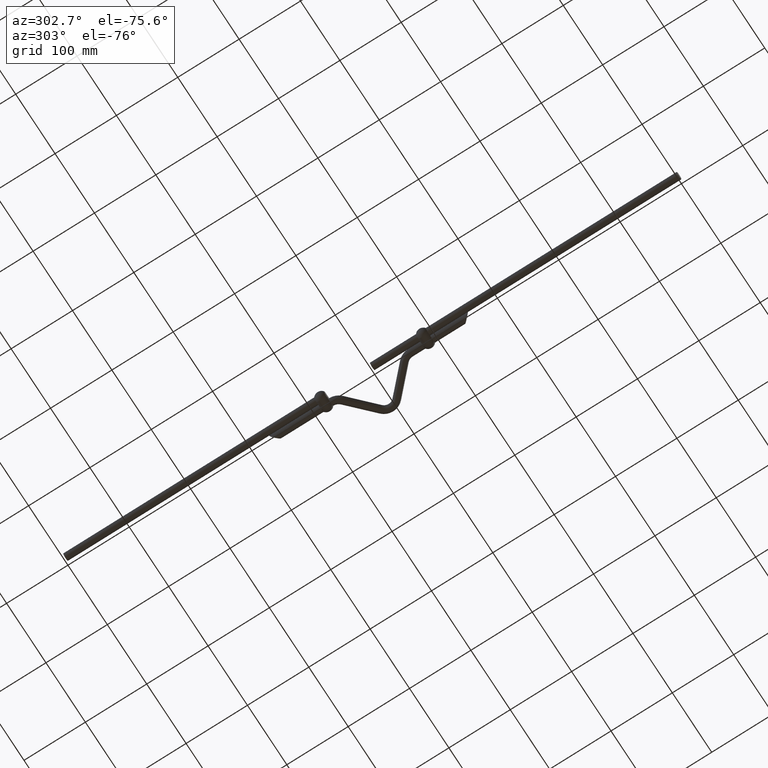
[diagram: clean part render]
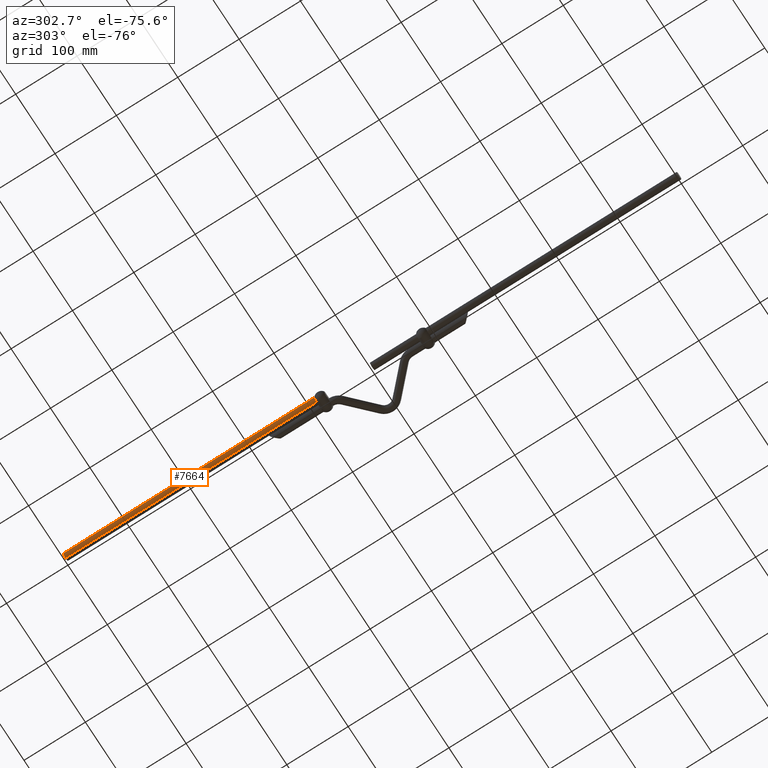
[diagram: same view with one face highlighted and labeled with its STEP entity id]
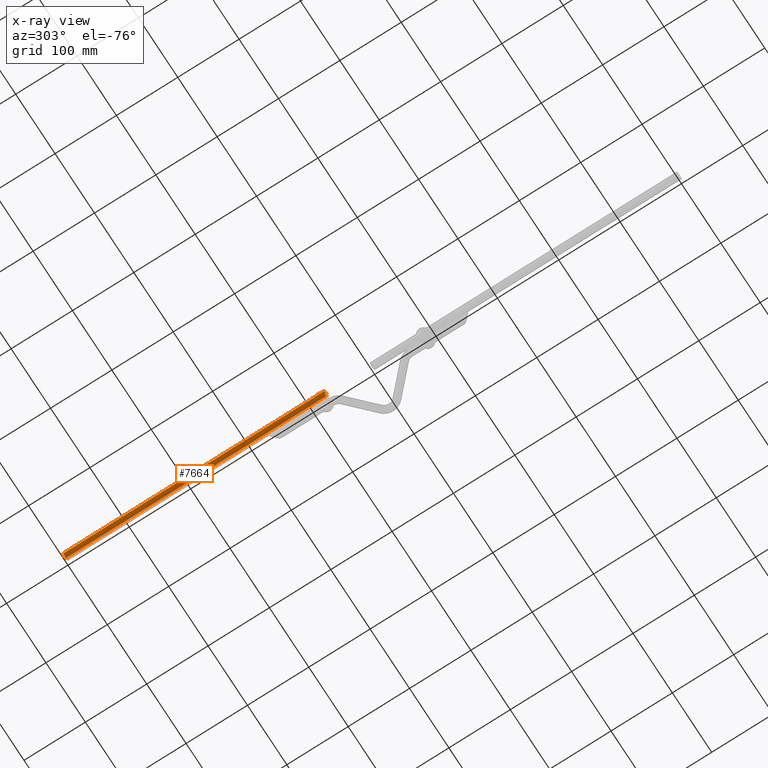
[diagram: x-ray of the same camera — body ghosted, the highlighted face saturated]
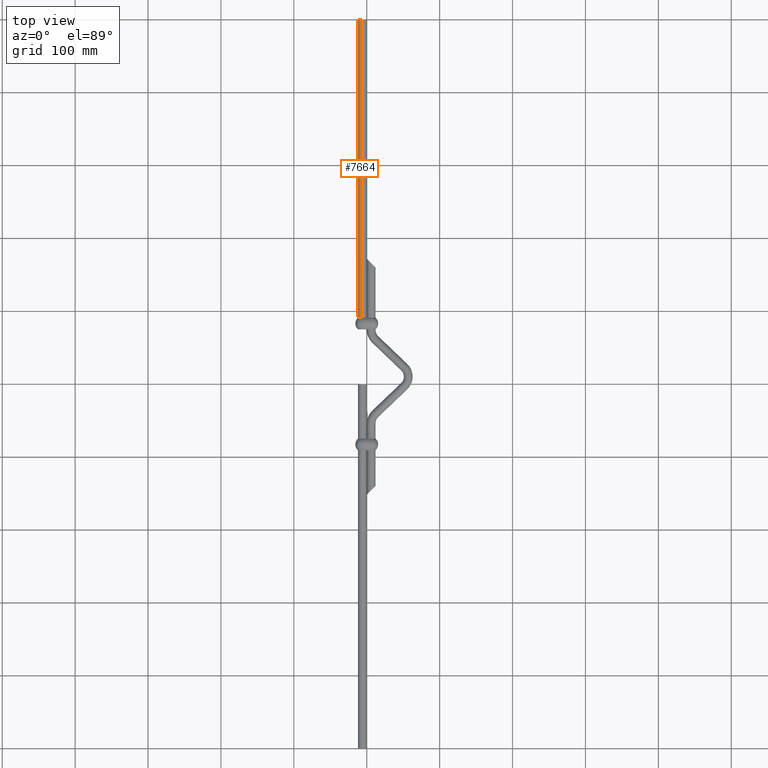
[diagram: same view with one face highlighted and labeled with its STEP entity id]
A machine part, auxiliary view. The second image highlights one B-rep face of the part: STEP entity #7664.
The next image is the same camera in x-ray: the body ghosted, the highlighted face saturated — about 0% of this face is hidden behind the body in this view.
A second angle (top view) of the same face is appended — the face is thin or edge-on in the first view.
In plain terms, the highlighted cylindrical surface (edge-blend (fillet) strip) has radius 6 mm, axis along (-0, -1, -0).
Its self-contained STEP definition (entity closure, byte-faithful):
#571 = CARTESIAN_POINT ( 'NONE',  ( -5.999999999999999100, 575.0000000000000000, 6.000000000000000900 ) ) ;
#2121 = LINE ( 'NONE', #10593, #10600 ) ;
#2141 = EDGE_CURVE ( 'NONE', #5032, #7172, #6627, .T. ) ;
#2422 = DIRECTION ( 'NONE',  ( 0.0000000000000000000, 0.0000000000000000000, 1.000000000000000000 ) ) ;
#2484 = AXIS2_PLACEMENT_3D ( 'NONE', #3321, #8434, #2422 ) ;
#2503 = CARTESIAN_POINT ( 'NONE',  ( -5.999999999999999100, 1000.000000000000000, 6.000000000000000900 ) ) ;
#2780 = ORIENTED_EDGE ( 'NONE', *, *, #5091, .T. ) ;
#3054 = LINE ( 'NONE', #2503, #4029 ) ;
#3173 = AXIS2_PLACEMENT_3D ( 'NONE', #10724, #8758, #4797 ) ;
#3321 = CARTESIAN_POINT ( 'NONE',  ( -6.000000000000000000, 575.0000000000000000, 0.0000000000000000000 ) ) ;
#4029 = VECTOR ( 'NONE', #10629, 1000.000000000000000 ) ;
#4051 = EDGE_CURVE ( 'NONE', #12201, #5369, #9805, .T. ) ;
#4322 = CARTESIAN_POINT ( 'NONE',  ( -6.000000000000000000, 1000.000000000000000, -6.000000000000000900 ) ) ;
#4514 = DIRECTION ( 'NONE',  ( -0.0000000000000000000, -1.000000000000000000, -0.0000000000000000000 ) ) ;
#4515 = EDGE_CURVE ( 'NONE', #7172, #5369, #3054, .T. ) ;
#4797 = DIRECTION ( 'NONE',  ( 0.0000000000000000000, 0.0000000000000000000, -1.000000000000000000 ) ) ;
#5032 = VERTEX_POINT ( 'NONE', #4322 ) ;
#5091 = EDGE_CURVE ( 'NONE', #5032, #12201, #2121, .T. ) ;
#5369 = VERTEX_POINT ( 'NONE', #571 ) ;
#6025 = CARTESIAN_POINT ( 'NONE',  ( -6.000000000000000000, 575.0000000000000000, -6.000000000000000900 ) ) ;
#6328 = AXIS2_PLACEMENT_3D ( 'NONE', #12613, #11559, #6396 ) ;
#6396 = DIRECTION ( 'NONE',  ( 0.0000000000000000000, 0.0000000000000000000, 1.000000000000000000 ) ) ;
#6627 = CIRCLE ( 'NONE', #6328, 6.000000000000000900 ) ;
#6910 = EDGE_LOOP ( 'NONE', ( #9071, #8243, #2780, #12354 ) ) ;
#6980 = FACE_OUTER_BOUND ( 'NONE', #6910, .T. ) ;
#7172 = VERTEX_POINT ( 'NONE', #12538 ) ;
#7664 = ADVANCED_FACE ( 'NONE', ( #6980 ), #7946, .T. ) ;
#7946 = CYLINDRICAL_SURFACE ( 'NONE', #3173, 6.000000000000000900 ) ;
#8243 = ORIENTED_EDGE ( 'NONE', *, *, #2141, .F. ) ;
#8434 = DIRECTION ( 'NONE',  ( 0.0000000000000000000, 1.000000000000000000, 0.0000000000000000000 ) ) ;
#8758 = DIRECTION ( 'NONE',  ( -0.0000000000000000000, -1.000000000000000000, -0.0000000000000000000 ) ) ;
#9071 = ORIENTED_EDGE ( 'NONE', *, *, #4515, .F. ) ;
#9805 = CIRCLE ( 'NONE', #2484, 6.000000000000000900 ) ;
#10593 = CARTESIAN_POINT ( 'NONE',  ( -6.000000000000000000, 1000.000000000000000, -6.000000000000000900 ) ) ;
#10600 = VECTOR ( 'NONE', #4514, 1000.000000000000000 ) ;
#10629 = DIRECTION ( 'NONE',  ( -0.0000000000000000000, -1.000000000000000000, -0.0000000000000000000 ) ) ;
#10724 = CARTESIAN_POINT ( 'NONE',  ( -6.000000000000000000, 1000.000000000000000, 0.0000000000000000000 ) ) ;
#11559 = DIRECTION ( 'NONE',  ( 0.0000000000000000000, 1.000000000000000000, 0.0000000000000000000 ) ) ;
#12201 = VERTEX_POINT ( 'NONE', #6025 ) ;
#12354 = ORIENTED_EDGE ( 'NONE', *, *, #4051, .T. ) ;
#12538 = CARTESIAN_POINT ( 'NONE',  ( -5.999999999999999100, 1000.000000000000000, 6.000000000000000900 ) ) ;
#12613 = CARTESIAN_POINT ( 'NONE',  ( -6.000000000000000000, 1000.000000000000000, 0.0000000000000000000 ) ) ;